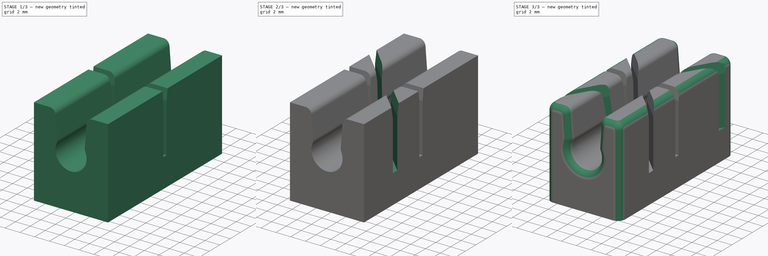
[diagram: build sequence overview — one tinted view per stage of 3, left to right]
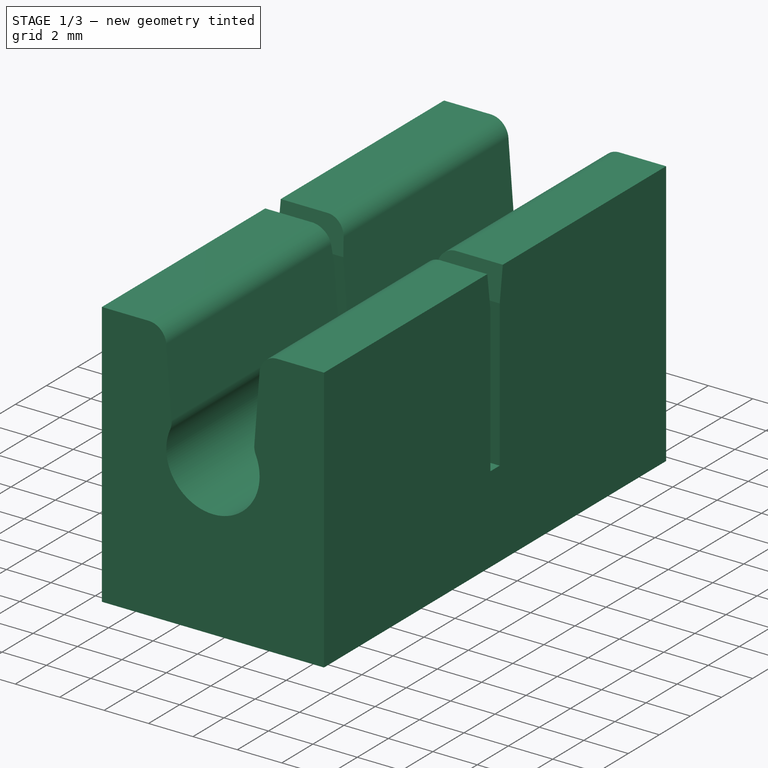
[diagram: stage 1 of 3 — iso view after this stage's code; geometry added in this stage tinted green]
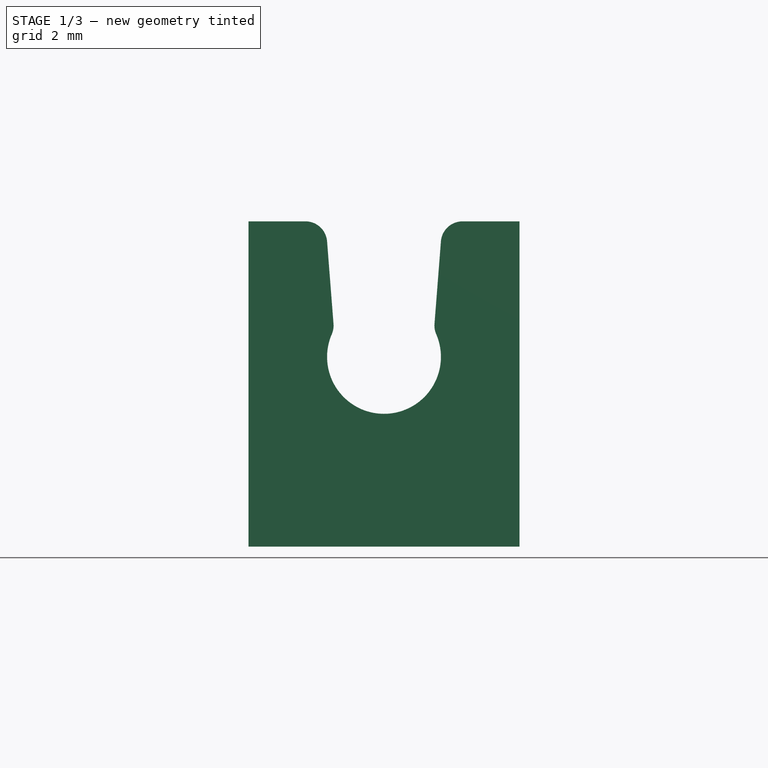
[diagram: stage 1 of 3 — front view after this stage's code; geometry added in this stage tinted green]
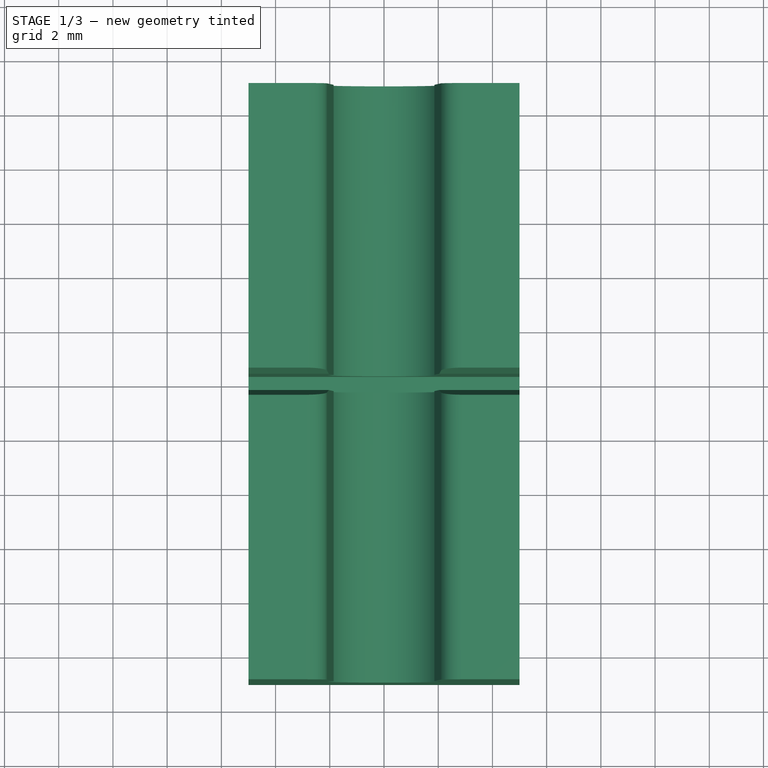
[diagram: stage 1 of 3 — top view after this stage's code; geometry added in this stage tinted green]
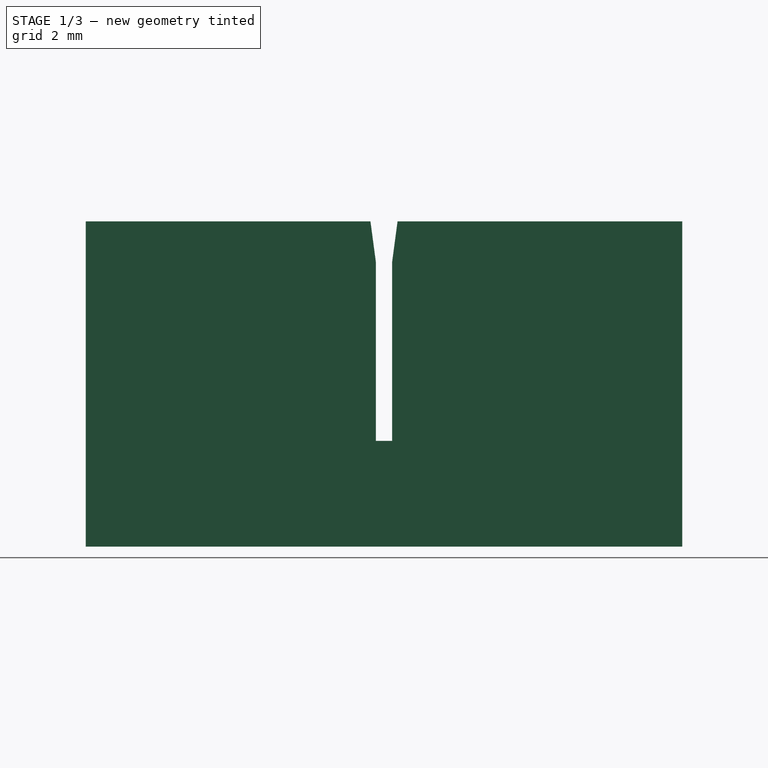
[diagram: stage 1 of 3 — right view after this stage's code; geometry added in this stage tinted green]
FCSTD DOCUMENT  (FreeCAD 1.1R44874 (Git))
Label: TubeCutter
License: Creative Commons Attribution-NonCommercial-ShareAlike
LicenseURL: http://creativecommons.org/licenses/by-nc-sa/4.0/
objects: Sketcher::SketchObject×4, PartDesign::Pocket×3, PartDesign::Pad×1, App::Point×1, PartDesign::Fillet×1, PartDesign::Body×1
note: 24 computed .brp shape members not serialized (recipe doc carries the construction recipe); baked Part::Feature solids carry a one-line shape summary decoded from their .brp

FEATURE [Sketcher::SketchObject] Sketch
  ArcFitTolerance = 0
  AttachmentSupport = -> [XZ_Plane001]
  ExternalTypes = [0]
  FullyConstrained = true
  MakeInternals = false
  MapMode = 5
  Placement = pos=(0,0,0) rot=(1,0,0;1.5708rad)
  _ExternalGeoVersion = 0
  sketch-geometry (15):
    g0: LineSegment StartX=5 StartY=5 StartZ=0 EndX=5 EndY=-7 EndZ=0
    g1: LineSegment StartX=5 StartY=-7 StartZ=0 EndX=-5 EndY=-7 EndZ=0
    g2: LineSegment StartX=-5 StartY=-7 StartZ=0 EndX=-5 EndY=5 EndZ=0
    g3: ArcOfCircle CenterX=0 CenterY=0 CenterZ=0 NormalX=0 NormalY=0 NormalZ=1 AngleXU=0 Radius=2.1 StartAngle=2.7319 EndAngle=6.69288
    g4: ArcOfCircle CenterX=-2.66 CenterY=1.15516 CenterZ=0 NormalX=0 NormalY=0 NormalZ=1 AngleXU=0 Radius=0.8 StartAngle=5.87349 EndAngle=6.36105
    g5: ArcOfCircle CenterX=2.66 CenterY=1.15516 CenterZ=0 NormalX=0 NormalY=0 NormalZ=1 AngleXU=0 Radius=0.8 StartAngle=3.06372 EndAngle=3.55129
    g6: LineSegment StartX=-5 StartY=5 StartZ=0 EndX=-2.89758 EndY=5 EndZ=0
    g7: LineSegment [constr] StartX=-2.89758 StartY=5 StartZ=0 EndX=2.89758 EndY=5 EndZ=0
    g8: LineSegment StartX=2.89758 StartY=5 StartZ=0 EndX=5 EndY=5 EndZ=0
    g9: ArcOfCircle CenterX=-2.89758 CenterY=4.2 CenterZ=0 NormalX=0 NormalY=0 NormalZ=1 AngleXU=0 Radius=0.8 StartAngle=0.077868 EndAngle=1.5708
    g10: ArcOfCircle CenterX=2.89758 CenterY=4.2 CenterZ=0 NormalX=0 NormalY=0 NormalZ=1 AngleXU=0 Radius=0.8 StartAngle=1.5708 EndAngle=3.06372
    g11: LineSegment StartX=-2.1 StartY=4.26223 StartZ=0 EndX=-1.86242 EndY=1.21739 EndZ=0
    g12: LineSegment StartX=2.1 StartY=4.26223 StartZ=0 EndX=1.86242 EndY=1.21739 EndZ=0
    g13: LineSegment [constr] StartX=-2.1 StartY=4.26223 StartZ=0 EndX=-2.1 EndY=0 EndZ=0
    g14: LineSegment [constr] StartX=-1.86 StartY=-0.974885 StartZ=0 EndX=-1.86 EndY=1.15516 EndZ=0
  constraints (40):
    c: Coincident(g8,g0)
    c: Coincident(g0,g1)
    c: Coincident(g1,g2)
    c: Coincident(g2,g6)
    c: Horizontal(g1)
    c: Vertical(g0)
    c: Vertical(g2)
    c: DistanceX(g6,g8) = 10  'Width'
    c: DistanceY(g2,g2) = 12  'Height'
    c: Coincident(g3,g-1)
    c: Symmetric(g6,g8,g-2)
    c: DistanceY(g3,g6) = 5  'Offset'
    c: Equal(g5,g4)
    c: Tangent(g3,g4) = 1.5708
    c: Tangent(g3,g5) = 1.5708
    c: Coincident(g6,g7)
    c: Coincident(g7,g8)
    c: Equal(g6,g8)
    c: Horizontal(g6)
    c: Horizontal(g8)
    c: Radius(g5) = 0.8
    c: Equal(g9,g10)
    c: Tangent(g8,g10) = 1.5708
    c: Tangent(g6,g9) = 1.5708
    c: Tangent(g10,g12) = -1.5708
    c: Tangent(g9,g11) = 1.5708
    c: Tangent(g4,g11) = 1.5708
    c: Tangent(g5,g12) = -1.5708
    c: Equal(g9,g4)
    c: Coincident(g13,g9)
    c: Vertical(g13)
    c: Tangent(g13,g3) = -1.5708
    c: Equal(g11,g12)
    c: PointOnObject(g14,g3)
    c: Vertical(g14)
    c: Tangent(g14,g4) = -1.5708
    c: DistanceX(g13,g14) = 0.24
    c: Angle(g13,g11) = 0.077868
    c: DistanceY(g3,g2) = 5  'TopOffset'
    c: Radius(g3) = 2.1  'Rt'
FEATURE [PartDesign::Pad] Pad
  Direction = (0,-1,2e-16)
  Length = 22
  Length2 = 100
  Placement = pos=(0,0,0) rot=(1,0,0;1.5708rad)
  Profile = -> Sketch
  SideType = 2
  Suppressed = false
  Type = 0
  Type2 = 0
FEATURE [Sketcher::SketchObject] Sketch001
  ArcFitTolerance = 1e-06
  AttachmentSupport = -> [YZ_Plane001]
  ExternalTypes = [0]
  FullyConstrained = true
  MakeInternals = false
  MapMode = 5
  Placement = pos=(0,0,0) rot=(0.57735,0.57735,0.57735;2.0944rad)
  _ExternalGeoVersion = 0
  expr: Constraints[14] = <<Sketch>>.Constraints.Rt + 1 mm
  expr: Constraints[15] = <<Sketch>>.Constraints.TopOffset
  sketch-geometry (7):
    g0: LineSegment StartX=-0.3 StartY=-3.1 StartZ=0 EndX=0.3 EndY=-3.1 EndZ=0
    g1: LineSegment StartX=-0.3 StartY=-3.1 StartZ=0 EndX=-0.3 EndY=3.5 EndZ=0
    g2: LineSegment StartX=0.3 StartY=-3.1 StartZ=0 EndX=0.3 EndY=3.5 EndZ=0
    g3: LineSegment [constr] StartX=-0.3 StartY=3.5 StartZ=0 EndX=0.3 EndY=3.5 EndZ=0
    g4: LineSegment StartX=-0.5 StartY=5 StartZ=0 EndX=0.5 EndY=5 EndZ=0
    g5: LineSegment StartX=-0.3 StartY=3.5 StartZ=0 EndX=-0.5 EndY=5 EndZ=0
    g6: LineSegment StartX=0.3 StartY=3.5 StartZ=0 EndX=0.5 EndY=5 EndZ=0
  constraints (19):
    c: DistanceX(g0,g0) = 0.6
    c: Coincident(g1,g0)
    c: Vertical(g1)
    c: Coincident(g2,g0)
    c: Vertical(g2)
    c: Coincident(g3,g1)
    c: Coincident(g3,g2)
    c: Coincident(g5,g1)
    c: Coincident(g5,g4)
    c: Coincident(g6,g2)
    c: Coincident(g6,g4)
    c: Equal(g5,g6)
    c: DistanceX(g4,g4) = 1
    c: Horizontal(g0)
    c: DistanceY(g0,g-1) = 3.1
    c: DistanceY(g-1,g4) = 5
    c: Symmetric(g4,g4,g-2)
    c: Horizontal(g3)
    c: DistanceY(g1,g4) = 1.5
FEATURE [PartDesign::Pocket] Pocket
  BaseFeature = -> Pad
  Direction = (-1,0,0)
  Length = 5
  Length2 = 5
  Placement = pos=(0,0,0) rot=(1,0,0;1.5708rad)
  Profile = -> Sketch001
  ReferenceAxis = -> Sketch001 [N_Axis]
  Refine = true
  SideType = 2
  Suppressed = false
  Type = 1
  Type2 = 0
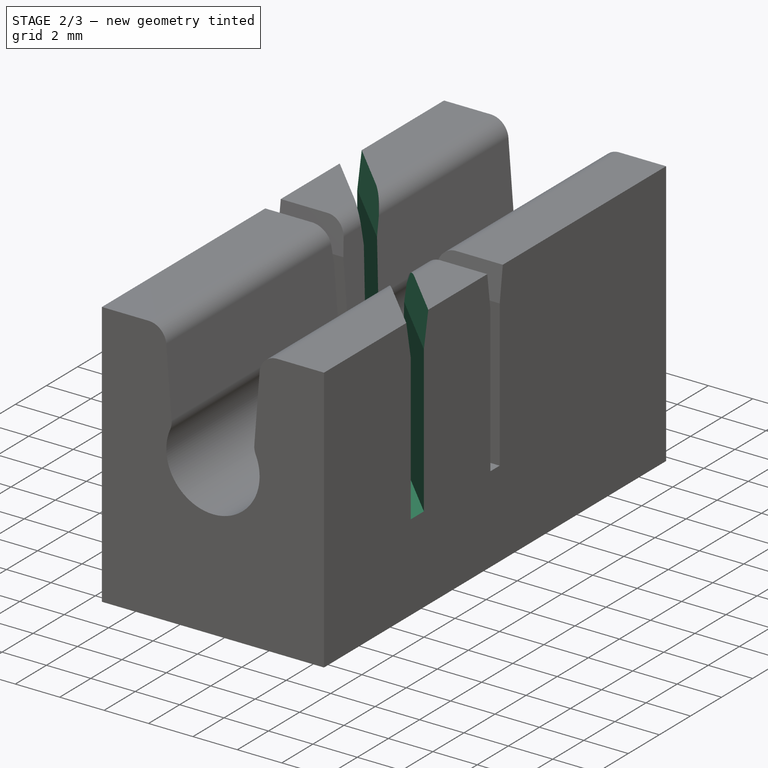
[diagram: stage 2 of 3 — iso view after this stage's code; geometry added in this stage tinted green]
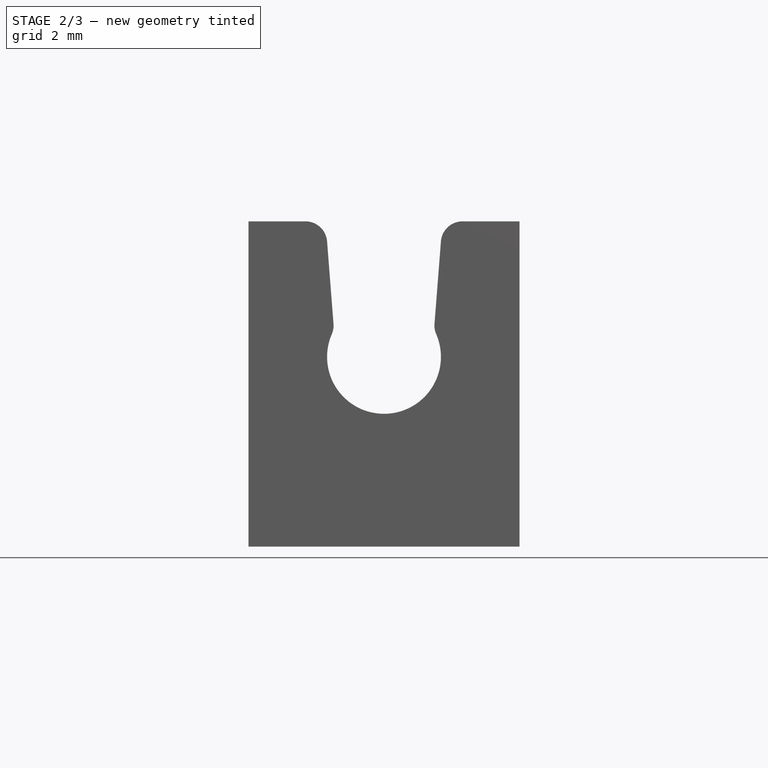
[diagram: stage 2 of 3 — front view after this stage's code; geometry added in this stage tinted green]
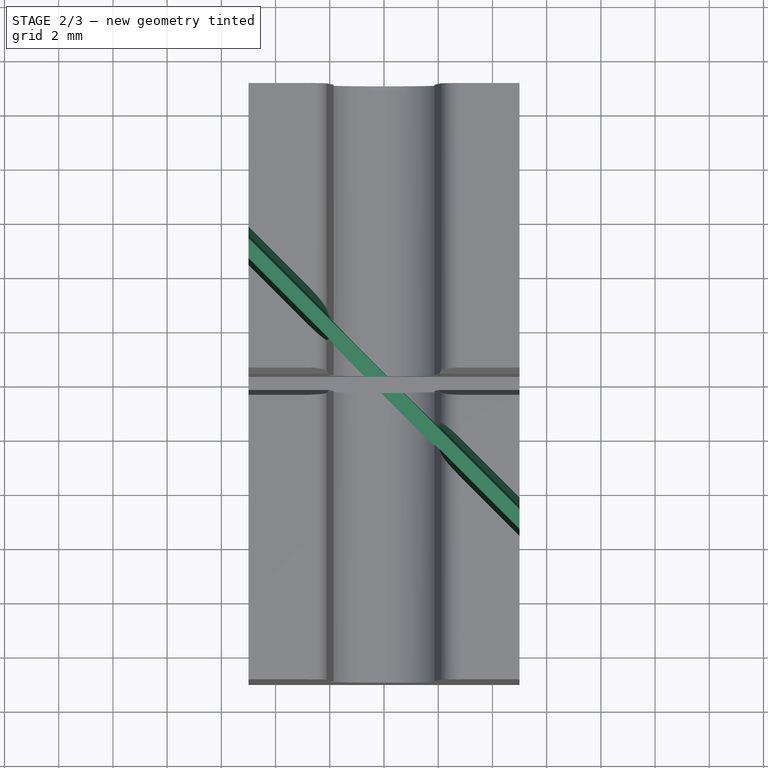
[diagram: stage 2 of 3 — top view after this stage's code; geometry added in this stage tinted green]
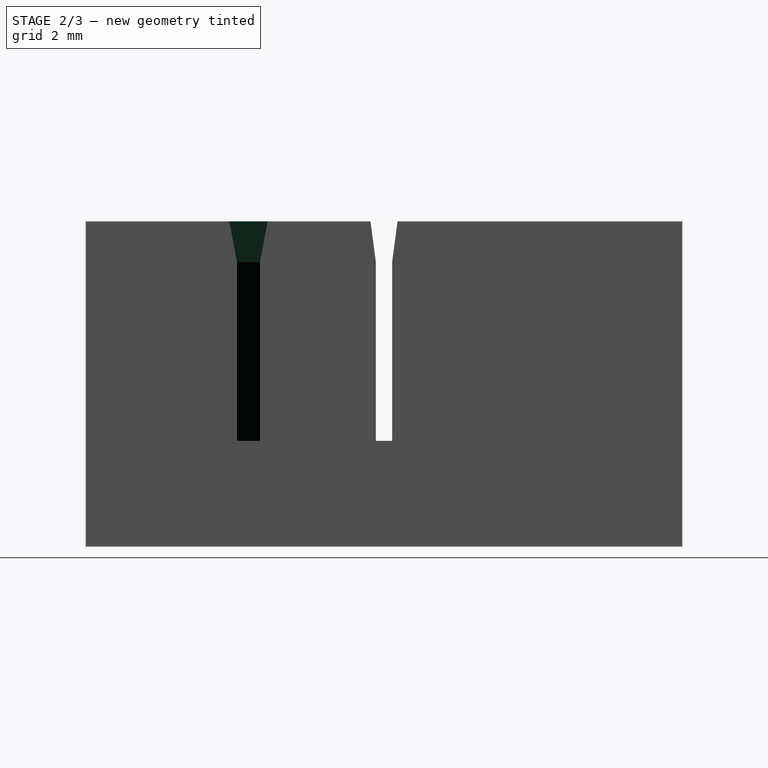
[diagram: stage 2 of 3 — right view after this stage's code; geometry added in this stage tinted green]
FEATURE [App::Point] Origin
  Role = Origin
FEATURE [Sketcher::SketchObject] Sketch002
  ArcFitTolerance = 1e-06
  AttachmentOffset = pos=(0,0,0) rot=(0,45,0;-0.785398rad)
  AttachmentSupport = -> [YZ_Plane001]
  ExternalTypes = [0]
  FullyConstrained = true
  MakeInternals = false
  MapMode = 5
  Placement = pos=(0,0,0) rot=(-0.862856,-0.357407,-0.357407;4.56541rad)
  _ExternalGeoVersion = 0
  expr: Constraints[14] = <<Sketch>>.Constraints.Rt + 1 mm
  expr: Constraints[15] = <<Sketch>>.Constraints.TopOffset
  sketch-geometry (7):
    g0: LineSegment StartX=-0.3 StartY=-3.1 StartZ=0 EndX=0.3 EndY=-3.1 EndZ=0
    g1: LineSegment StartX=-0.3 StartY=-3.1 StartZ=0 EndX=-0.3 EndY=3.5 EndZ=0
    g2: LineSegment StartX=0.3 StartY=-3.1 StartZ=0 EndX=0.3 EndY=3.5 EndZ=0
    g3: LineSegment [constr] StartX=-0.3 StartY=3.5 StartZ=0 EndX=0.3 EndY=3.5 EndZ=0
    g4: LineSegment StartX=-0.5 StartY=5 StartZ=0 EndX=0.5 EndY=5 EndZ=0
    g5: LineSegment StartX=-0.3 StartY=3.5 StartZ=0 EndX=-0.5 EndY=5 EndZ=0
    g6: LineSegment StartX=0.3 StartY=3.5 StartZ=0 EndX=0.5 EndY=5 EndZ=0
  constraints (19):
    c: DistanceX(g0,g0) = 0.6
    c: Coincident(g1,g0)
    c: Vertical(g1)
    c: Coincident(g2,g0)
    c: Vertical(g2)
    c: Coincident(g3,g1)
    c: Coincident(g3,g2)
    c: Coincident(g5,g1)
    c: Coincident(g5,g4)
    c: Coincident(g6,g2)
    c: Coincident(g6,g4)
    c: Equal(g5,g6)
    c: DistanceX(g4,g4) = 1
    c: Horizontal(g0)
    c: DistanceY(g0,g-1) = 3.1
    c: DistanceY(g-1,g4) = 5
    c: Symmetric(g4,g4,g-2)
    c: Horizontal(g3)
    c: DistanceY(g1,g4) = 1.5
FEATURE [PartDesign::Pocket] Pocket001
  BaseFeature = -> Pocket
  Direction = (-0.707107,0.707107,0)
  Length = 5
  Length2 = 5
  Placement = pos=(0,0,0) rot=(1,0,0;1.5708rad)
  Profile = -> Sketch002
  ReferenceAxis = -> Sketch002 [N_Axis]
  SideType = 2
  Suppressed = false
  Type = 1
  Type2 = 0
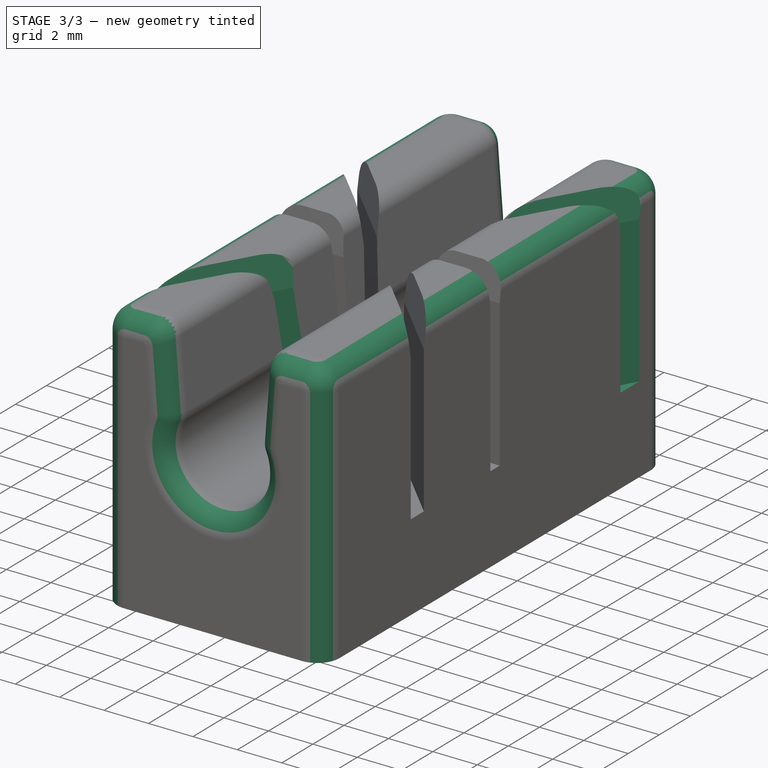
[diagram: stage 3 of 3 — iso view after this stage's code; geometry added in this stage tinted green]
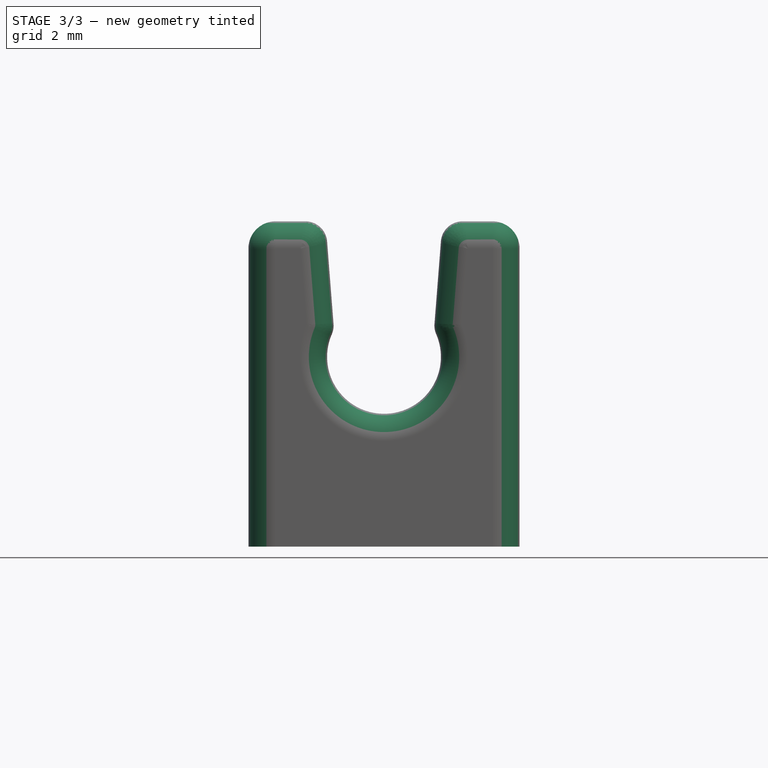
[diagram: stage 3 of 3 — front view after this stage's code; geometry added in this stage tinted green]
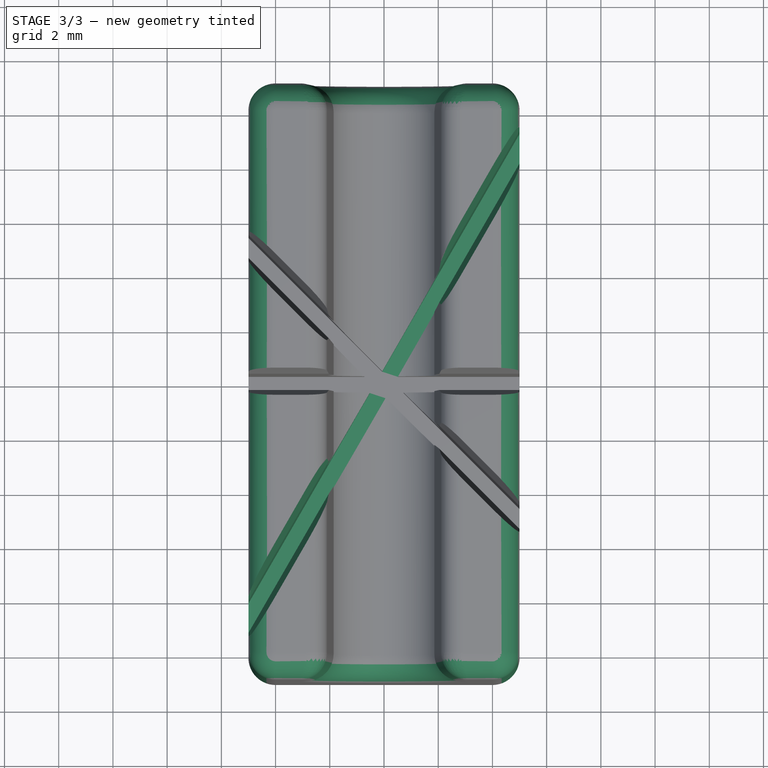
[diagram: stage 3 of 3 — top view after this stage's code; geometry added in this stage tinted green]
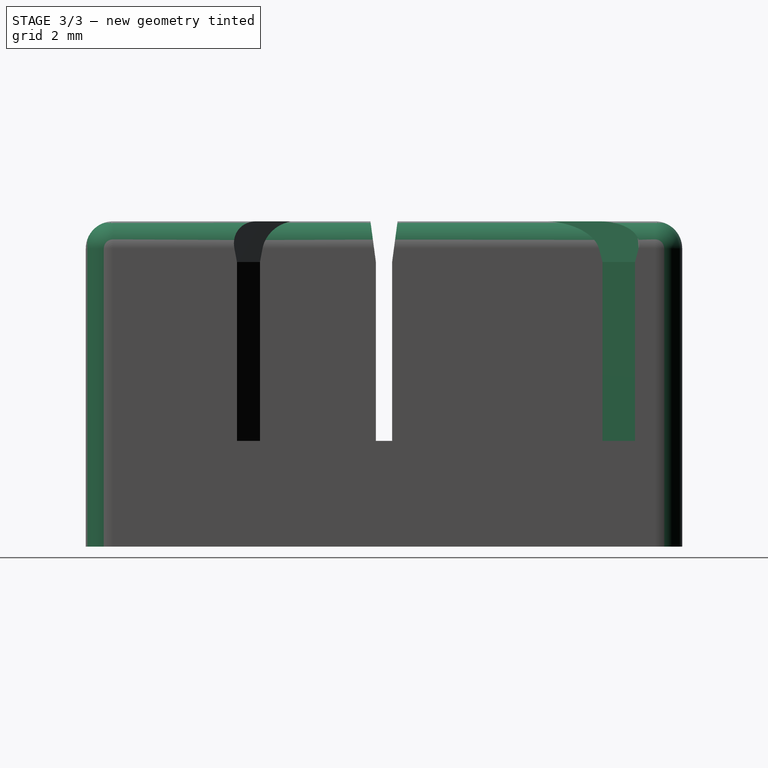
[diagram: stage 3 of 3 — right view after this stage's code; geometry added in this stage tinted green]
FEATURE [Sketcher::SketchObject] Sketch003
  ArcFitTolerance = 1e-06
  AttachmentOffset = pos=(0,0,0) rot=(0,1,0;1.0472rad)
  AttachmentSupport = -> [YZ_Plane001]
  ExternalTypes = [0]
  FullyConstrained = true
  MakeInternals = false
  MapMode = 5
  Placement = pos=(0,0,0) rot=(0.186157,0.694747,0.694747;2.77349rad)
  _ExternalGeoVersion = 0
  expr: Constraints[14] = <<Sketch>>.Constraints.Rt + 1 mm
  expr: Constraints[15] = <<Sketch>>.Constraints.TopOffset
  sketch-geometry (7):
    g0: LineSegment StartX=-0.3 StartY=-3.1 StartZ=0 EndX=0.3 EndY=-3.1 EndZ=0
    g1: LineSegment StartX=-0.3 StartY=-3.1 StartZ=0 EndX=-0.3 EndY=3.5 EndZ=0
    g2: LineSegment StartX=0.3 StartY=-3.1 StartZ=0 EndX=0.3 EndY=3.5 EndZ=0
    g3: LineSegment [constr] StartX=-0.3 StartY=3.5 StartZ=0 EndX=0.3 EndY=3.5 EndZ=0
    g4: LineSegment StartX=-0.5 StartY=5 StartZ=0 EndX=0.5 EndY=5 EndZ=0
    g5: LineSegment StartX=-0.3 StartY=3.5 StartZ=0 EndX=-0.5 EndY=5 EndZ=0
    g6: LineSegment StartX=0.3 StartY=3.5 StartZ=0 EndX=0.5 EndY=5 EndZ=0
  constraints (19):
    c: DistanceX(g0,g0) = 0.6
    c: Coincident(g1,g0)
    c: Vertical(g1)
    c: Coincident(g2,g0)
    c: Vertical(g2)
    c: Coincident(g3,g1)
    c: Coincident(g3,g2)
    c: Coincident(g5,g1)
    c: Coincident(g5,g4)
    c: Coincident(g6,g2)
    c: Coincident(g6,g4)
    c: Equal(g5,g6)
    c: DistanceX(g4,g4) = 1
    c: Horizontal(g0)
    c: DistanceY(g0,g-1) = 3.1
    c: DistanceY(g-1,g4) = 5
    c: Symmetric(g4,g4,g-2)
    c: Horizontal(g3)
    c: DistanceY(g1,g4) = 1.5
FEATURE [PartDesign::Pocket] Pocket002
  BaseFeature = -> Pocket001
  Direction = (-0.5,-0.866025,0)
  Length = 5
  Length2 = 5
  Placement = pos=(0,0,0) rot=(1,0,0;1.5708rad)
  Profile = -> Sketch003
  ReferenceAxis = -> Sketch003 [N_Axis]
  SideType = 2
  Suppressed = false
  Type = 1
  Type2 = 0
FEATURE [PartDesign::Fillet] Fillet
  Base = -> Pocket002 [Edge61,Edge78,Edge60,Edge54,Edge48,Edge42,Edge7,Edge8,Edge2,Edge30,Edge5,Edge17,Edge18,Edge24]
  BaseFeature = -> Pocket002
  Placement = pos=(0,0,0) rot=(1,0,0;1.5708rad)
  Radius = 1
  Refine = true
  SupportTransform = false
  Suppressed = false
  UseAllEdges = false
FEATURE [PartDesign::Body] Body
  AllowCompound = false
  Group = -> [Sketch,Pad,Sketch001,Pocket,Sketch002,Pocket001,Sketch003,Pocket002,Fillet]
  Origin = -> Origin001
  Tip = -> Fillet
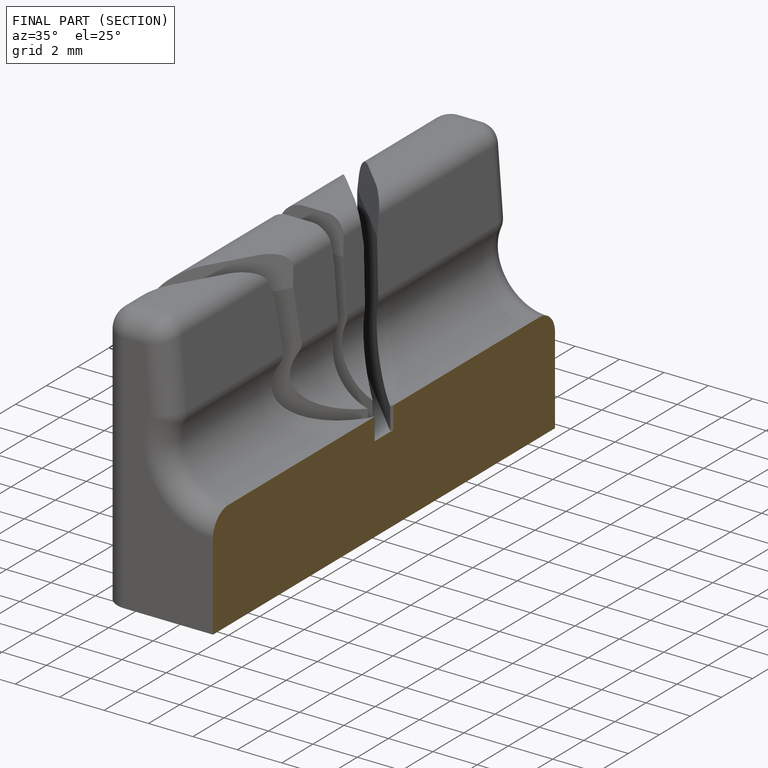
[diagram: finished part — half-section view (interior)]
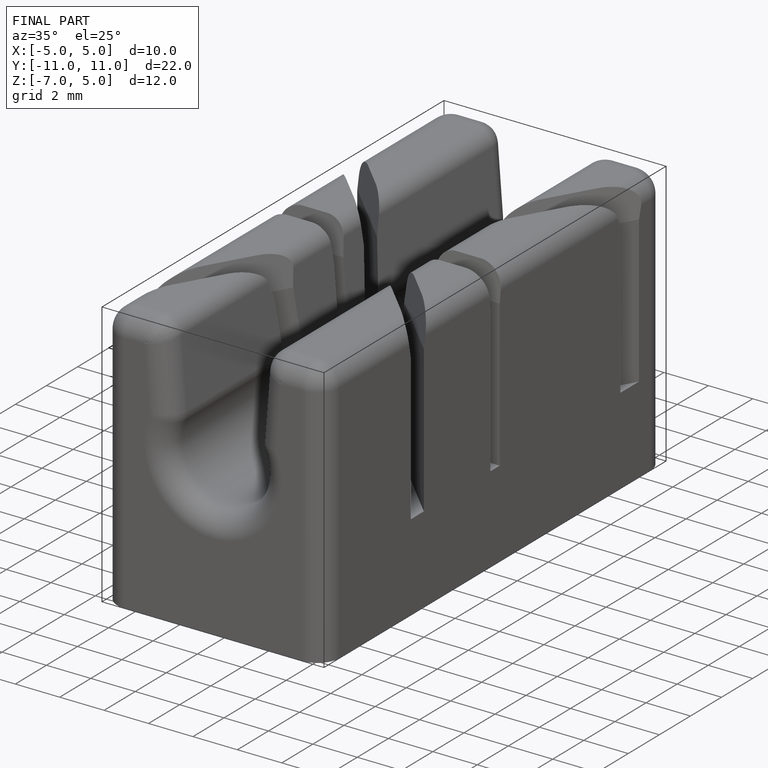
[diagram: finished part — iso view with bounding-box wireframe]
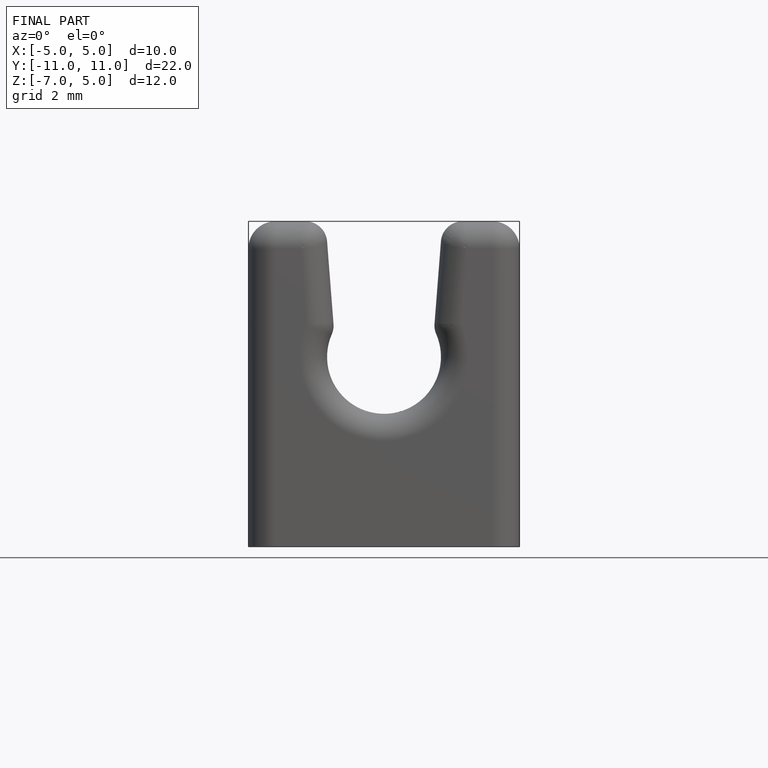
[diagram: finished part — front view with bounding-box wireframe]
